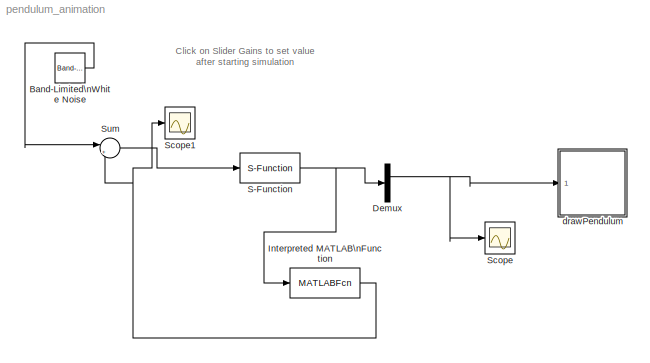
MODEL pendulum_animation
KIND model
BLOCK [Reference] Band-Limited\nWhite Noise  REF=simulink/Sources/Band-Limited\nWhite Noise
  Cov = [0.1]
  Ports = [0, 1]
  SID = 19
  SourceBlock = simulink/Sources/Band-Limited\nWhite Noise
  SourceType = Band-Limited White Noise.
  Ts = 0.1
  VectorParams1D = on
  seed = [23341]
BLOCK [Demux] Demux
  DisplayOption = bar
  Outputs = 2
  Ports = [1, 2]
  SID = 14
BLOCK [MATLABFcn] Interpreted MATLAB\nFunction
  MATLABFcn = controller(u,P)
  OutputDimensions = 1
  Ports = [1, 1]
  SID = 16
BLOCK [S-Function] S-Function
  EnableBusSupport = off
  FunctionName = pendulum
  Parameters = P
  Ports = [1, 1]
  SID = 13
BLOCK [Scope] Scope
  DataFormat = StructureWithTime
  Floating = off
  NumInputPorts = 1
  Ports = [1]
  SID = 17
  SampleTime = 0
  ShowLegends = off
BLOCK [Scope] Scope1
  DataFormat = StructureWithTime
  Floating = off
  NumInputPorts = 1
  Ports = [1]
  SID = 18
  SampleTime = 0
  SaveName = ScopeData1
  ShowLegends = off
BLOCK [Sum] Sum
  IconShape = round
  InputSameDT = off
  Inputs = |++
  OutDataTypeStr = Inherit: Inherit via internal rule
  Ports = [2, 1]
  SID = 20
  SaturateOnIntegerOverflow = off
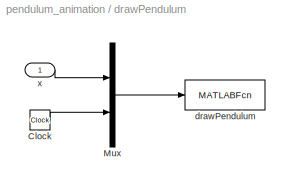
BLOCK [SubSystem] drawPendulum
  FunctionWithSeparateData = off
  MaskHideContents = off
  MinAlgLoopOccurrences = off
  Opaque = off
  Ports = [1]
  PropExecContextOutsideSubsystem = off
  RTWSystemCode = Auto
  RequestExecContextInheritance = off
  SID = 4
BLOCK [Clock] drawPendulum/Clock
  SID = 6
BLOCK [Mux] drawPendulum/Mux
  DisplayOption = bar
  Inputs = 2
  Ports = [2, 1]
  SID = 7
BLOCK [MATLABFcn] drawPendulum/drawPendulum
  MATLABFcn = drawPendulum(u,L,gap,width,height)
  OutputDimensions = 0
  Ports = [1]
  SID = 8
  SampleTime = 0.1
BLOCK [Inport] drawPendulum/x
  IconDisplay = Port number
  SID = 5
ANNOTATION (root): Click on Slider Gains to set value \nafter starting simulation
LINE Band-Limited\nWhite Noise:1 -> Sum:1
NET Demux:1 -> Scope:1, drawPendulum:1
NET Interpreted MATLAB\nFunction:1 -> Scope1:1, Sum:2
NET S-Function:1 -> Demux:1, Interpreted MATLAB\nFunction:1
LINE Sum:1 -> S-Function:1
LINE drawPendulum/Clock:1 -> drawPendulum/Mux:2
LINE drawPendulum/Mux:1 -> drawPendulum/drawPendulum:1
LINE drawPendulum/x:1 -> drawPendulum/Mux:1
note: NET lines group one-source signal fan-out (src -> all destinations, sorted); 1:1 wires keep LINE
